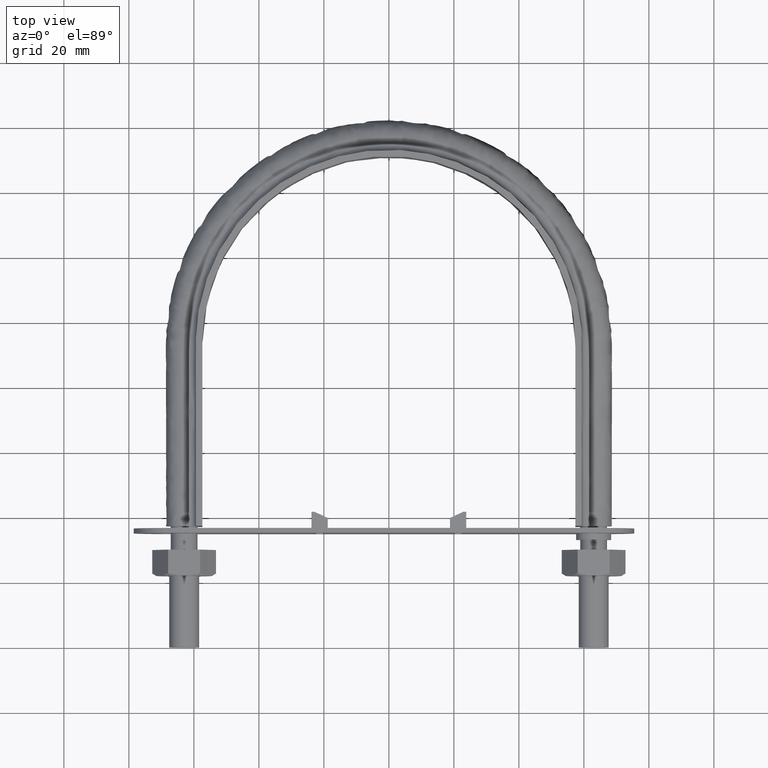
[diagram: clean part render]
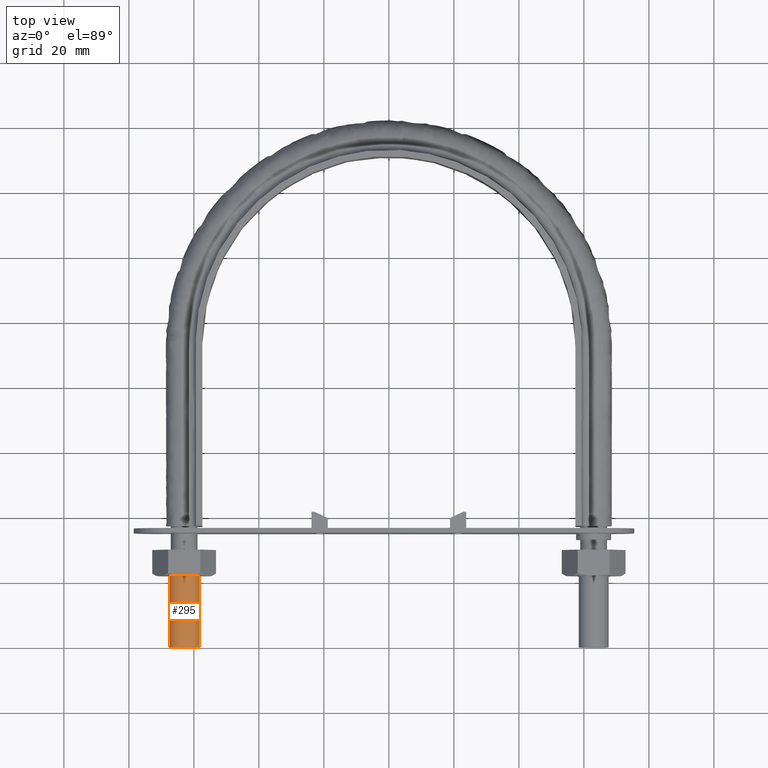
[diagram: same view with one face highlighted and labeled with its STEP entity id]
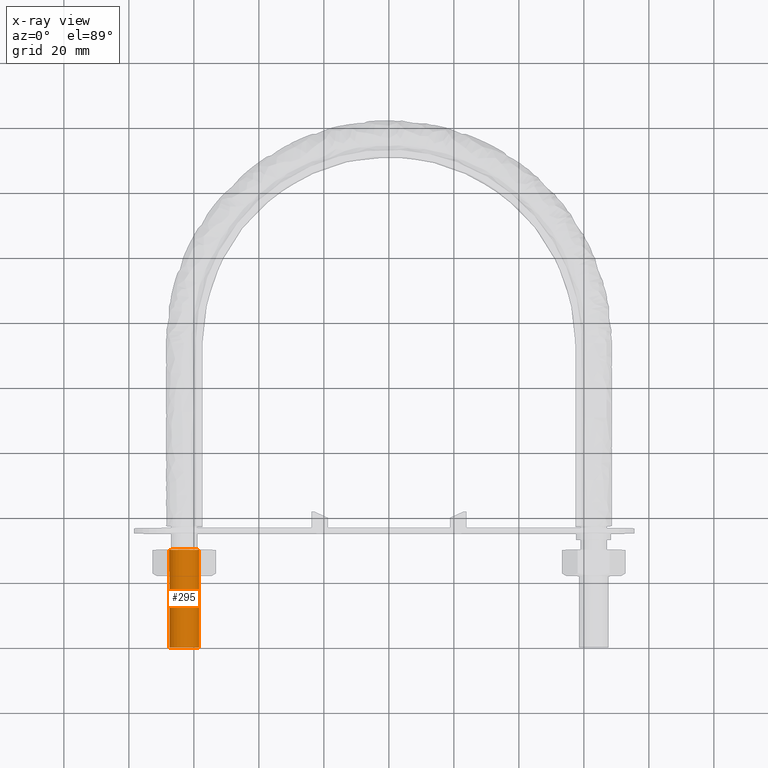
[diagram: x-ray of the same camera — body ghosted, the highlighted face saturated]
A machine part, top view. The second image highlights one B-rep face of the part: STEP entity #295.
The next image is the same camera in x-ray: the body ghosted, the highlighted face saturated — about 0% of this face is hidden behind the body in this view.
In plain terms, the highlighted cylindrical surface (bore or boss wall) has radius 4.6 mm, axis along (-0, -1, -0).
Its self-contained STEP definition (entity closure, byte-faithful):
#295 = ADVANCED_FACE( '', ( #442, #443 ), #444, .T. );
#442 = FACE_OUTER_BOUND( '', #1349, .T. );
#443 = FACE_OUTER_BOUND( '', #1350, .T. );
#444 = CYLINDRICAL_SURFACE( '', #1351, 4.60000000000000 );
#1349 = EDGE_LOOP( '', ( #1721 ) );
#1350 = EDGE_LOOP( '', ( #1722 ) );
#1351 = AXIS2_PLACEMENT_3D( '', #1723, #1724, #1725 );
#1721 = ORIENTED_EDGE( '', *, *, #2396, .T. );
#1722 = ORIENTED_EDGE( '', *, *, #2404, .T. );
#1723 = CARTESIAN_POINT( '', ( -63.0000000000000, 30.0000000000000, 1.92814270409333E-015 ) );
#1724 = DIRECTION( '', ( -2.44921270764475E-016, -1.00000000000000, -6.12303176911189E-017 ) );
#1725 = DIRECTION( '', ( 1.00000000000000, -2.44921270764475E-016, 2.44921270764475E-016 ) );
#2396 = EDGE_CURVE( '', #2660, #2660, #2661, .T. );
#2404 = EDGE_CURVE( '', #2669, #2669, #2670, .T. );
#2660 = VERTEX_POINT( '', #3294 );
#2661 = CIRCLE( '', #3295, 4.60000000000000 );
#2669 = VERTEX_POINT( '', #3303 );
#2670 = CIRCLE( '', #3304, 4.60000000000000 );
#3294 = CARTESIAN_POINT( '', ( -63.0000000000000, 7.71502002908098E-015, 4.60000000000000 ) );
#3295 = AXIS2_PLACEMENT_3D( '', #3892, #3893, #3894 );
#3303 = CARTESIAN_POINT( '', ( -58.4000000000000, 30.0000000000000, 3.05478054960992E-015 ) );
#3304 = AXIS2_PLACEMENT_3D( '', #3916, #3917, #3918 );
#3892 = CARTESIAN_POINT( '', ( -63.0000000000000, 7.71502002908098E-015, 9.12331733597671E-017 ) );
#3893 = DIRECTION( '', ( 1.22460635382238E-016, 1.00000000000000, 0.000000000000000 ) );
#3894 = DIRECTION( '', ( 0.000000000000000, 0.000000000000000, 1.00000000000000 ) );
#3916 = CARTESIAN_POINT( '', ( -63.0000000000000, 30.0000000000000, 1.92814270409333E-015 ) );
#3917 = DIRECTION( '', ( -2.44921270764475E-016, -1.00000000000000, -6.12303176911189E-017 ) );
#3918 = DIRECTION( '', ( 1.00000000000000, -2.44921270764475E-016, 2.44921270764475E-016 ) );